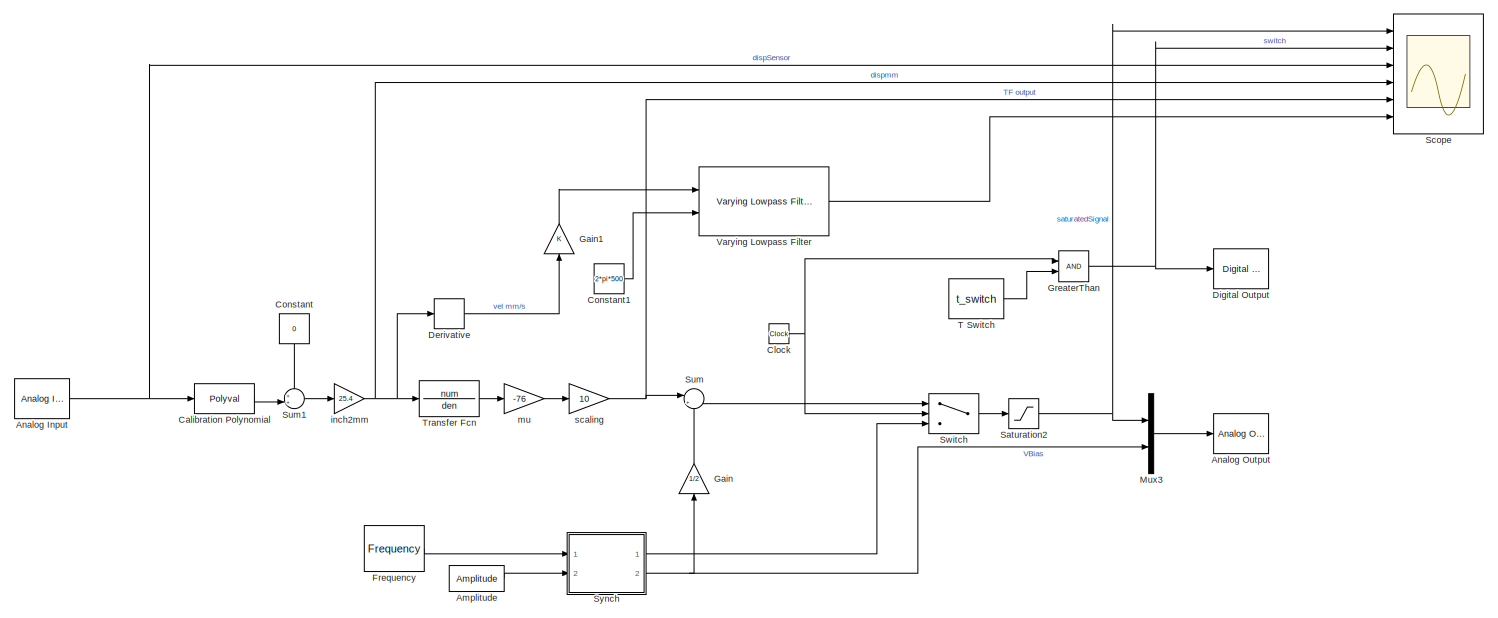
[diagram: root canvas - part 1/2, full width, top band]
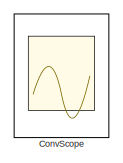
[diagram: root canvas - part 2/2, bottom left region]
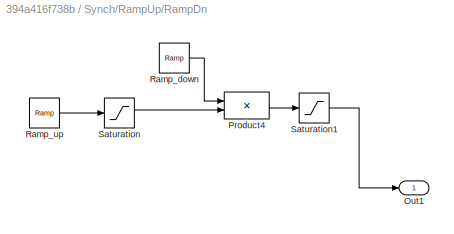
MODEL slx_394a416f738b
KIND model
CONFIG AbsTol = auto
CONFIG EnableMultiTasking = off
CONFIG FixedStep = samptime
CONFIG MaxStep = auto
CONFIG MinStep = auto
CONFIG RelTol = 1e-3
CONFIG SampleTimeConstraint = Unconstrained
CONFIG SolverName = ode5
CONFIG StartTime = 0.0
CONFIG StopTime = 14
BLOCK [Constant] Amplitude
  Value = Amplitude
BLOCK [Reference] Analog Input  REF=sldrtlib/Analog Input
  AttributesFormatString = National Instruments\nPCIe-6343 [auto]
  Ports = [0, 1]
  SourceBlock = sldrtlib/Analog Input
  SourceProductBaseCode = WT
  SourceType = Simulink Desktop Real-Time Analog Input
BLOCK [Reference] Analog Output  REF=sldrtlib/Analog Output
  AttributesFormatString = National Instruments\nPCIe-6343 [auto]
  Ports = [1]
  SourceBlock = sldrtlib/Analog Output
  SourceProductBaseCode = WT
  SourceType = Simulink Desktop Real-Time Analog Output
BLOCK [Polyval] Calibration Polynomial
  Coefs = pf
BLOCK [Clock] Clock
BLOCK [Constant] Constant
  NameLocation = left
  Value = 0
BLOCK [Constant] Constant1
  Value = 2*pi*500
BLOCK [Scope] ConvScope
  Commented = on
  Floating = off
  NumInputPorts = 5
  Ports = [5]
  ScopeSpecificationString = Simulink.scopes.TimeScopeBlockCfg('CurrentConfiguration', extmgr.ConfigurationSet(extmgr.Configuration('Core','General UI',true),extmgr.Configuration('Core','Source UI',true),extmgr.Configuration('Sources','WiredSimulink',true,'DataLogging',true,'DataLoggingLimitDataPoints',true,'DataLoggingMaxPoints','500000','DataLoggingSaveFormat','StructureWithTime','DataLoggingVariableName','ScopeData1'),extm...<+4990ch>
BLOCK [Derivative] Derivative
BLOCK [Reference] Digital Output  REF=sldrtlib/Digital Output
  AttributesFormatString = National Instruments\nPCIe-6343 [auto]
  Ports = [1]
  SourceBlock = sldrtlib/Digital Output
  SourceProductBaseCode = WT
  SourceType = Simulink Desktop Real-Time Digital Output
BLOCK [Constant] Frequency
  Value = Frequency
BLOCK [Gain] Gain
  Gain = 1/2
  NameLocation = right
BLOCK [Gain] Gain1
  NameLocation = right
BLOCK [RelationalOperator] GreaterThan
  InputSameDT = off
  OutDataTypeStr = boolean
  Ports = [2, 1]
  RndMeth = Simplest
BLOCK [Mux] Mux3
  DisplayOption = bar
  Inputs = 2
  Ports = [2, 1]
BLOCK [Saturate] Saturation2
  LowerLimit = 0
  UpperLimit = 8
BLOCK [Scope] Scope
  Floating = off
  NumInputPorts = 6
  Ports = [6]
  ScopeSpecificationString = Simulink.scopes.TimeScopeBlockCfg('CurrentConfiguration', extmgr.ConfigurationSet(extmgr.Configuration('Core','General UI',true),extmgr.Configuration('Core','Source UI',true),extmgr.Configuration('Sources','WiredSimulink',true,'DataLogging',true,'DataLoggingLimitDataPoints',true,'DataLoggingMaxPoints','500000','DataLoggingSaveFormat','StructureWithTime'),extmgr.Configuration('Visuals','Time Domain...<+5626ch>
BLOCK [Sum] Sum
  Inputs = |++
  NameLocation = top
  Ports = [2, 1]
BLOCK [Sum] Sum1
  Inputs = ++|
  Ports = [2, 1]
BLOCK [Switch] Switch
  Criteria = u2 > Threshold
  InputSameDT = off
  SaturateOnIntegerOverflow = off
  Threshold = t_switch
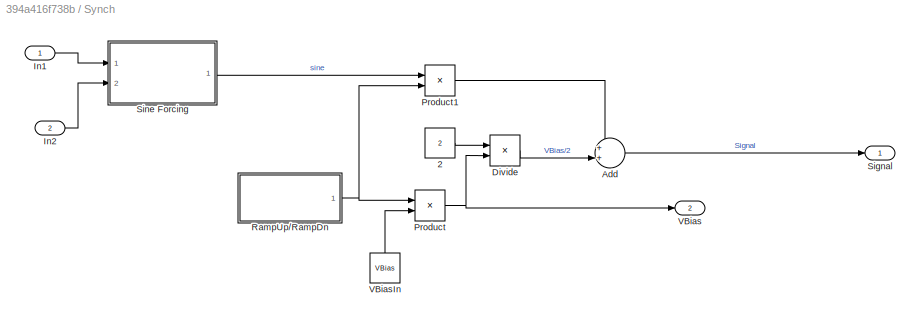
BLOCK [SubSystem] Synch
  Ports = [2, 2]
  RequestExecContextInheritance = off
BLOCK [Constant] Synch/2 
  Value = 2
BLOCK [Sum] Synch/Add
  Inputs = ++|
  Ports = [2, 1]
BLOCK [Product] Synch/Divide
  Inputs = /*
  Ports = [2, 1]
BLOCK [Inport] Synch/In1
BLOCK [Inport] Synch/In2
  Port = 2
BLOCK [Product] Synch/Product
  Ports = [2, 1]
BLOCK [Product] Synch/Product1
  Ports = [2, 1]
BLOCK [SubSystem] Synch/RampUp//RampDn
  Ports = [0, 1]
  RequestExecContextInheritance = off
BLOCK [Outport] Synch/RampUp//RampDn/Out1
BLOCK [Product] Synch/RampUp//RampDn/Product4
  Ports = [2, 1]
BLOCK [Reference] Synch/RampUp//RampDn/Ramp_down  REF=simulink/Sources/Ramp
  Ports = [0, 1]
  SourceBlock = simulink/Sources/Ramp
  SourceProductBaseCode = SL
  SourceType = Ramp
BLOCK [Reference] Synch/RampUp//RampDn/Ramp_up  REF=simulink/Sources/Ramp
  Ports = [0, 1]
  SourceBlock = simulink/Sources/Ramp
  SourceProductBaseCode = SL
  SourceType = Ramp
BLOCK [Saturate] Synch/RampUp//RampDn/Saturation
  LowerLimit = 0
  UpperLimit = 1
BLOCK [Saturate] Synch/RampUp//RampDn/Saturation1
  LowerLimit = 0
  UpperLimit = 1
BLOCK [Outport] Synch/Signal
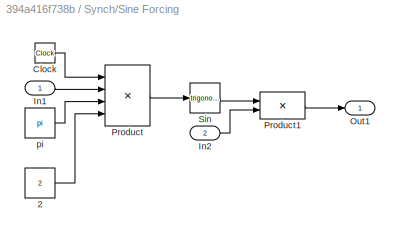
BLOCK [SubSystem] Synch/Sine Forcing
  Ports = [2, 1]
  RequestExecContextInheritance = off
BLOCK [Constant] Synch/Sine Forcing/2
  Value = 2
BLOCK [Clock] Synch/Sine Forcing/Clock
BLOCK [Inport] Synch/Sine Forcing/In1
BLOCK [Inport] Synch/Sine Forcing/In2
  Port = 2
BLOCK [Outport] Synch/Sine Forcing/Out1
BLOCK [Product] Synch/Sine Forcing/Product
  Inputs = 4
  Ports = [4, 1]
BLOCK [Product] Synch/Sine Forcing/Product1
  Ports = [2, 1]
BLOCK [Trigonometry] Synch/Sine Forcing/Sin
  OutputSignalType = real
  Ports = [1, 1]
BLOCK [Constant] Synch/Sine Forcing/pi
  Value = pi
BLOCK [Outport] Synch/VBias
  Port = 2
BLOCK [Constant] Synch/VBiasIn
  NameLocation = right
  Value = VBias
BLOCK [Constant] T Switch
  Value = t_switch
BLOCK [TransferFcn] Transfer Fcn
  Denominator = den
  Numerator = num
BLOCK [Reference] Varying Lowpass Filter  REF=cstblocks/Linear Parameter Varying/Varying Lowpass Filter
  Ports = [2, 1]
  SourceBlock = cstblocks/Linear Parameter Varying/Varying Lowpass Filter
  SourceProductBaseCode = CT
  SourceType = Varying Lowpass Filter
BLOCK [Gain] inch2mm
  Gain = 25.4
BLOCK [Gain] mu
  Gain = -76
BLOCK [Gain] scaling
  Gain = 10
LINE Amplitude:1 -> Synch:2
NET Analog Input:1 -> Calibration Polynomial:1, Scope:3
LINE Calibration Polynomial:1 -> Sum1:2
NET Clock:1 -> GreaterThan:1, Switch:2
LINE Constant1:1 -> Varying Lowpass Filter:2
LINE Constant:1 -> Sum1:1
LINE Derivative:1 -> Gain1:1
LINE Frequency:1 -> Synch:1
LINE Gain1:1 -> Varying Lowpass Filter:1
LINE Gain:1 -> Sum:2
NET GreaterThan:1 -> Digital Output:1, Scope:2
LINE Mux3:1 -> Analog Output:1
NET Saturation2:1 -> Mux3:1, Scope:1
LINE Sum1:1 -> inch2mm:1
LINE Sum:1 -> Switch:1
LINE Switch:1 -> Saturation2:1
LINE Synch/2 :1 -> Synch/Divide:1
LINE Synch/Add:1 -> Synch/Signal:1
LINE Synch/Divide:1 -> Synch/Add:2
LINE Synch/In1:1 -> Synch/Sine Forcing:1
LINE Synch/In2:1 -> Synch/Sine Forcing:2
LINE Synch/Product1:1 -> Synch/Add:1
NET Synch/Product:1 -> Synch/Divide:2, Synch/VBias:1
LINE Synch/RampUp//RampDn/Product4:1 -> Synch/RampUp//RampDn/Saturation1:1
LINE Synch/RampUp//RampDn/Ramp_down:1 -> Synch/RampUp//RampDn/Product4:1
LINE Synch/RampUp//RampDn/Ramp_up:1 -> Synch/RampUp//RampDn/Saturation:1
LINE Synch/RampUp//RampDn/Saturation1:1 -> Synch/RampUp//RampDn/Out1:1
LINE Synch/RampUp//RampDn/Saturation:1 -> Synch/RampUp//RampDn/Product4:2
NET Synch/RampUp//RampDn:1 -> Synch/Product1:2, Synch/Product:1
LINE Synch/Sine Forcing/2:1 -> Synch/Sine Forcing/Product:4
LINE Synch/Sine Forcing/Clock:1 -> Synch/Sine Forcing/Product:1
LINE Synch/Sine Forcing/In1:1 -> Synch/Sine Forcing/Product:2
LINE Synch/Sine Forcing/In2:1 -> Synch/Sine Forcing/Product1:2
LINE Synch/Sine Forcing/Product1:1 -> Synch/Sine Forcing/Out1:1
LINE Synch/Sine Forcing/Product:1 -> Synch/Sine Forcing/Sin:1
LINE Synch/Sine Forcing/Sin:1 -> Synch/Sine Forcing/Product1:1
LINE Synch/Sine Forcing/pi:1 -> Synch/Sine Forcing/Product:3
LINE Synch/Sine Forcing:1 -> Synch/Product1:1
LINE Synch/VBiasIn:1 -> Synch/Product:2
LINE Synch:1 -> Switch:3
NET Synch:2 -> Gain:1, Mux3:2
LINE T Switch:1 -> GreaterThan:2
LINE Transfer Fcn:1 -> mu:1
LINE Varying Lowpass Filter:1 -> Scope:6
NET inch2mm:1 -> Derivative:1, Scope:4, Transfer Fcn:1
LINE mu:1 -> scaling:1
NET scaling:1 -> Scope:5, Sum:1
note: NET lines group one-source signal fan-out (src -> all destinations, sorted); 1:1 wires keep LINE
